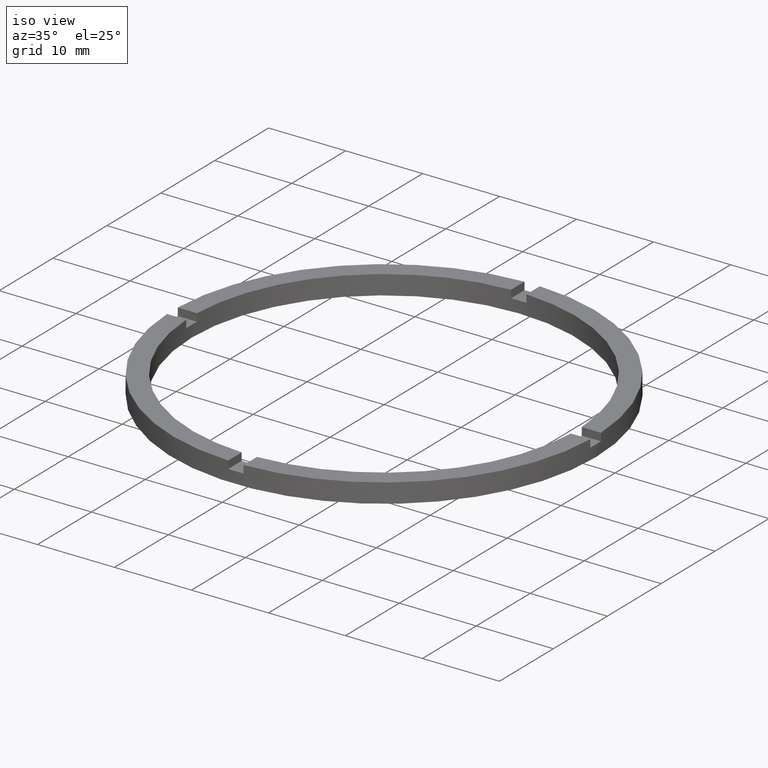
[diagram: clean part render]
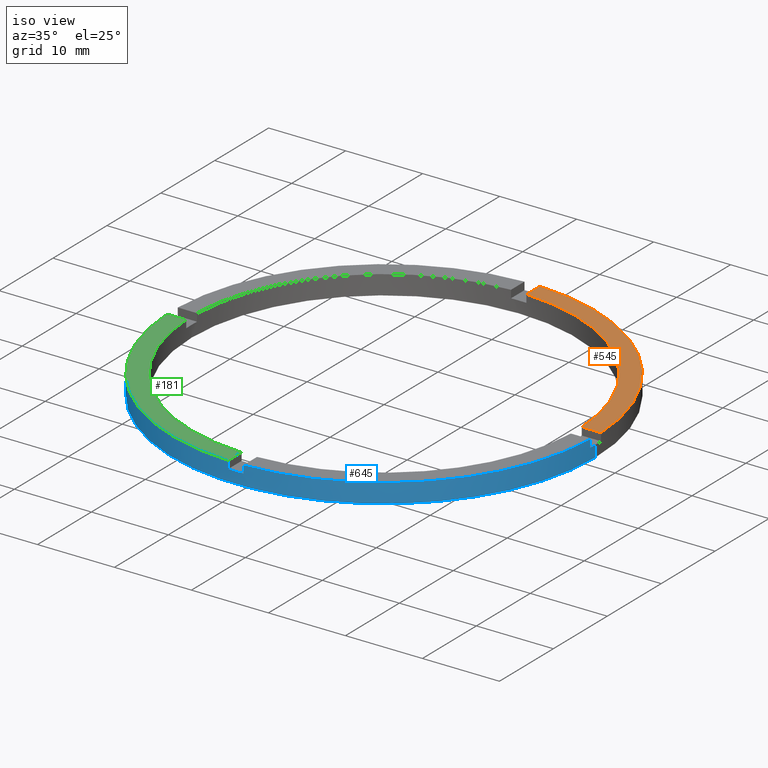
[diagram: same view with three faces highlighted in distinct colors, each labeled with its STEP entity id]
A machine part, iso view with three faces highlighted in distinct colors.
Their STEP definitions:

[orange] entity #545 — the highlighted planar face has unit normal (0, 0, 1).
#16 = LINE ( 'NONE', #481, #541 ) ;
#19 = EDGE_CURVE ( 'NONE', #359, #665, #283, .T. ) ;
#50 = DIRECTION ( 'NONE',  ( 1.000000000000000000, 0.000000000000000000, 0.000000000000000000 ) ) ;
#68 = EDGE_CURVE ( 'NONE', #596, #601, #16, .T. ) ;
#72 = ORIENTED_EDGE ( 'NONE', *, *, #68, .F. ) ;
#107 = EDGE_LOOP ( 'NONE', ( #416, #148, #72, #644 ) ) ;
#115 = CARTESIAN_POINT ( 'NONE',  ( 0.000000000000000000, 0.000000000000000000, 2.500000000000000000 ) ) ;
#148 = ORIENTED_EDGE ( 'NONE', *, *, #227, .F. ) ;
#165 = EDGE_CURVE ( 'NONE', #596, #665, #515, .T. ) ;
#166 = AXIS2_PLACEMENT_3D ( 'NONE', #192, #394, #572 ) ;
#192 = CARTESIAN_POINT ( 'NONE',  ( 0.000000000000000000, 0.000000000000000000, 2.500000000000000000 ) ) ;
#227 = EDGE_CURVE ( 'NONE', #601, #359, #523, .T. ) ;
#283 = LINE ( 'NONE', #292, #537 ) ;
#292 = CARTESIAN_POINT ( 'NONE',  ( 0.9999999999999735767, 17.50000000000000000, 2.500000000000000000 ) ) ;
#302 = AXIS2_PLACEMENT_3D ( 'NONE', #609, #321, #440 ) ;
#321 = DIRECTION ( 'NONE',  ( 0.000000000000000000, 0.000000000000000000, 1.000000000000000000 ) ) ;
#322 = AXIS2_PLACEMENT_3D ( 'NONE', #115, #335, #50 ) ;
#335 = DIRECTION ( 'NONE',  ( 0.000000000000000000, 0.000000000000000000, 1.000000000000000000 ) ) ;
#359 = VERTEX_POINT ( 'NONE', #464 ) ;
#394 = DIRECTION ( 'NONE',  ( 0.000000000000000000, 0.000000000000000000, 1.000000000000000000 ) ) ;
#416 = ORIENTED_EDGE ( 'NONE', *, *, #19, .F. ) ;
#434 = DIRECTION ( 'NONE',  ( -1.000000000000000000, -4.336808689942017120E-17, -0.000000000000000000 ) ) ;
#440 = DIRECTION ( 'NONE',  ( 1.000000000000000000, 0.000000000000000000, 0.000000000000000000 ) ) ;
#464 = CARTESIAN_POINT ( 'NONE',  ( 0.9999999999999735767, 24.97999199359359679, 2.500000000000000000 ) ) ;
#481 = CARTESIAN_POINT ( 'NONE',  ( 17.49999999999999645, 0.9999999999998425704, 2.500000000000000000 ) ) ;
#515 = CIRCLE ( 'NONE', #302, 27.50000000000000000 ) ;
#523 = CIRCLE ( 'NONE', #322, 25.00000000000000000 ) ;
#526 = DIRECTION ( 'NONE',  ( 0.000000000000000000, 1.000000000000000000, 0.000000000000000000 ) ) ;
#537 = VECTOR ( 'NONE', #526, 1000.000000000000000 ) ;
#541 = VECTOR ( 'NONE', #434, 1000.000000000000000 ) ;
#545 = ADVANCED_FACE ( 'NONE', ( #741 ), #566, .T. ) ;
#566 = PLANE ( 'NONE',  #166 ) ;
#572 = DIRECTION ( 'NONE',  ( 1.000000000000000000, 0.000000000000000000, -0.000000000000000000 ) ) ;
#575 = CARTESIAN_POINT ( 'NONE',  ( 24.97999199359360034, 0.9999999999998430145, 2.500000000000000000 ) ) ;
#585 = CARTESIAN_POINT ( 'NONE',  ( 0.9999999999999735767, 27.48181216732259102, 2.500000000000000000 ) ) ;
#596 = VERTEX_POINT ( 'NONE', #699 ) ;
#601 = VERTEX_POINT ( 'NONE', #575 ) ;
#609 = CARTESIAN_POINT ( 'NONE',  ( 0.000000000000000000, 0.000000000000000000, 2.500000000000000000 ) ) ;
#644 = ORIENTED_EDGE ( 'NONE', *, *, #165, .T. ) ;
#665 = VERTEX_POINT ( 'NONE', #585 ) ;
#699 = CARTESIAN_POINT ( 'NONE',  ( 27.48181216732259458, 0.9999999999998430145, 2.500000000000000000 ) ) ;
#741 = FACE_OUTER_BOUND ( 'NONE', #107, .T. ) ;

[blue] entity #645 — the highlighted cylindrical surface (partial cylindrical patch) has radius 27.5 mm, axis along (-0, -0, -1).
#3 = DIRECTION ( 'NONE',  ( 1.000000000000000000, 0.000000000000000000, 0.000000000000000000 ) ) ;
#12 = VECTOR ( 'NONE', #169, 1000.000000000000000 ) ;
#47 = CARTESIAN_POINT ( 'NONE',  ( 27.48181216732258392, -1.000000000000157208, 2.500000000000000000 ) ) ;
#57 = EDGE_CURVE ( 'NONE', #654, #403, #773, .T. ) ;
#58 = DIRECTION ( 'NONE',  ( 0.000000000000000000, 0.000000000000000000, 1.000000000000000000 ) ) ;
#61 = ORIENTED_EDGE ( 'NONE', *, *, #328, .F. ) ;
#76 = ORIENTED_EDGE ( 'NONE', *, *, #425, .F. ) ;
#78 = ORIENTED_EDGE ( 'NONE', *, *, #132, .F. ) ;
#81 = ORIENTED_EDGE ( 'NONE', *, *, #57, .T. ) ;
#104 = VERTEX_POINT ( 'NONE', #203 ) ;
#109 = VERTEX_POINT ( 'NONE', #123 ) ;
#123 = CARTESIAN_POINT ( 'NONE',  ( -1.000000000000160094, -27.48181216732258392, 1.500000000000000000 ) ) ;
#125 = DIRECTION ( 'NONE',  ( 0.000000000000000000, 0.000000000000000000, 1.000000000000000000 ) ) ;
#132 = EDGE_CURVE ( 'NONE', #109, #186, #776, .T. ) ;
#135 = CARTESIAN_POINT ( 'NONE',  ( 27.50000000000000000, 3.367778697655221307E-15, 0.000000000000000000 ) ) ;
#140 = EDGE_CURVE ( 'NONE', #445, #104, #507, .T. ) ;
#152 = AXIS2_PLACEMENT_3D ( 'NONE', #604, #196, #677 ) ;
#169 = DIRECTION ( 'NONE',  ( -0.000000000000000000, -0.000000000000000000, -1.000000000000000000 ) ) ;
#173 = AXIS2_PLACEMENT_3D ( 'NONE', #592, #125, #3 ) ;
#186 = VERTEX_POINT ( 'NONE', #664 ) ;
#194 = ORIENTED_EDGE ( 'NONE', *, *, #472, .T. ) ;
#195 = ORIENTED_EDGE ( 'NONE', *, *, #241, .T. ) ;
#196 = DIRECTION ( 'NONE',  ( 0.000000000000000000, 0.000000000000000000, 1.000000000000000000 ) ) ;
#203 = CARTESIAN_POINT ( 'NONE',  ( -27.48181216732259102, -1.000000000000026867, 1.500000000000000000 ) ) ;
#217 = DIRECTION ( 'NONE',  ( -0.000000000000000000, -0.000000000000000000, -1.000000000000000000 ) ) ;
#225 = AXIS2_PLACEMENT_3D ( 'NONE', #558, #565, #551 ) ;
#226 = CARTESIAN_POINT ( 'NONE',  ( -27.50000000000000000, 0.000000000000000000, 0.000000000000000000 ) ) ;
#231 = FACE_OUTER_BOUND ( 'NONE', #648, .T. ) ;
#240 = LINE ( 'NONE', #508, #759 ) ;
#241 = EDGE_CURVE ( 'NONE', #623, #186, #782, .T. ) ;
#248 = VECTOR ( 'NONE', #297, 1000.000000000000000 ) ;
#250 = DIRECTION ( 'NONE',  ( 1.000000000000000000, 0.000000000000000000, 0.000000000000000000 ) ) ;
#274 = DIRECTION ( 'NONE',  ( -0.000000000000000000, -0.000000000000000000, -1.000000000000000000 ) ) ;
#286 = AXIS2_PLACEMENT_3D ( 'NONE', #658, #401, #250 ) ;
#291 = VECTOR ( 'NONE', #274, 1000.000000000000000 ) ;
#296 = CIRCLE ( 'NONE', #286, 27.50000000000000000 ) ;
#297 = DIRECTION ( 'NONE',  ( 0.000000000000000000, 0.000000000000000000, 1.000000000000000000 ) ) ;
#303 = CIRCLE ( 'NONE', #173, 27.50000000000000000 ) ;
#306 = LINE ( 'NONE', #610, #291 ) ;
#326 = AXIS2_PLACEMENT_3D ( 'NONE', #777, #58, #428 ) ;
#328 = EDGE_CURVE ( 'NONE', #662, #452, #303, .T. ) ;
#344 = CARTESIAN_POINT ( 'NONE',  ( 0.9999999999998400169, -27.48181216732259458, 2.500000000000000000 ) ) ;
#351 = ORIENTED_EDGE ( 'NONE', *, *, #731, .T. ) ;
#361 = ORIENTED_EDGE ( 'NONE', *, *, #681, .T. ) ;
#362 = EDGE_CURVE ( 'NONE', #363, #369, #562, .T. ) ;
#363 = VERTEX_POINT ( 'NONE', #429 ) ;
#364 = DIRECTION ( 'NONE',  ( 1.000000000000000000, 0.000000000000000000, 0.000000000000000000 ) ) ;
#368 = VERTEX_POINT ( 'NONE', #47 ) ;
#369 = VERTEX_POINT ( 'NONE', #473 ) ;
#372 = CARTESIAN_POINT ( 'NONE',  ( 0.000000000000000000, 0.000000000000000000, 1.500000000000000000 ) ) ;
#373 = ORIENTED_EDGE ( 'NONE', *, *, #362, .F. ) ;
#401 = DIRECTION ( 'NONE',  ( 0.000000000000000000, 0.000000000000000000, 1.000000000000000000 ) ) ;
#403 = VERTEX_POINT ( 'NONE', #135 ) ;
#425 = EDGE_CURVE ( 'NONE', #623, #368, #296, .T. ) ;
#428 = DIRECTION ( 'NONE',  ( 1.000000000000000000, 0.000000000000000000, 0.000000000000000000 ) ) ;
#429 = CARTESIAN_POINT ( 'NONE',  ( 27.48181216732258392, -1.000000000000157208, 1.500000000000000000 ) ) ;
#430 = AXIS2_PLACEMENT_3D ( 'NONE', #372, #758, #364 ) ;
#441 = CARTESIAN_POINT ( 'NONE',  ( -27.50000000000000000, 0.000000000000000000, 1.500000000000000000 ) ) ;
#445 = VERTEX_POINT ( 'NONE', #441 ) ;
#452 = VERTEX_POINT ( 'NONE', #694 ) ;
#466 = DIRECTION ( 'NONE',  ( -1.000000000000000000, 0.000000000000000000, 0.000000000000000000 ) ) ;
#472 = EDGE_CURVE ( 'NONE', #445, #654, #306, .T. ) ;
#473 = CARTESIAN_POINT ( 'NONE',  ( 27.50000000000000000, 3.367778697655221307E-15, 1.500000000000000000 ) ) ;
#489 = CYLINDRICAL_SURFACE ( 'NONE', #636, 27.50000000000000000 ) ;
#497 = VECTOR ( 'NONE', #652, 1000.000000000000000 ) ;
#506 = DIRECTION ( 'NONE',  ( -0.000000000000000000, -0.000000000000000000, -1.000000000000000000 ) ) ;
#507 = CIRCLE ( 'NONE', #152, 27.50000000000000000 ) ;
#508 = CARTESIAN_POINT ( 'NONE',  ( -27.48181216732259102, -1.000000000000026867, 2.500000000000000000 ) ) ;
#551 = DIRECTION ( 'NONE',  ( 1.000000000000000000, 0.000000000000000000, 0.000000000000000000 ) ) ;
#558 = CARTESIAN_POINT ( 'NONE',  ( 0.000000000000000000, 0.000000000000000000, 1.500000000000000000 ) ) ;
#562 = CIRCLE ( 'NONE', #430, 27.50000000000000000 ) ;
#565 = DIRECTION ( 'NONE',  ( -0.000000000000000000, 0.000000000000000000, 1.000000000000000000 ) ) ;
#576 = CARTESIAN_POINT ( 'NONE',  ( 27.48181216732258392, -1.000000000000157208, 2.500000000000000000 ) ) ;
#578 = CARTESIAN_POINT ( 'NONE',  ( 0.9999999999998400169, -27.48181216732259458, 2.500000000000000000 ) ) ;
#592 = CARTESIAN_POINT ( 'NONE',  ( 0.000000000000000000, 0.000000000000000000, 2.500000000000000000 ) ) ;
#604 = CARTESIAN_POINT ( 'NONE',  ( 0.000000000000000000, 0.000000000000000000, 1.500000000000000000 ) ) ;
#610 = CARTESIAN_POINT ( 'NONE',  ( -27.50000000000000000, 0.000000000000000000, 2.500000000000000000 ) ) ;
#612 = EDGE_CURVE ( 'NONE', #369, #403, #743, .T. ) ;
#622 = ORIENTED_EDGE ( 'NONE', *, *, #612, .F. ) ;
#623 = VERTEX_POINT ( 'NONE', #578 ) ;
#636 = AXIS2_PLACEMENT_3D ( 'NONE', #752, #217, #466 ) ;
#640 = CARTESIAN_POINT ( 'NONE',  ( 27.50000000000000000, 3.367778697655221307E-15, 2.500000000000000000 ) ) ;
#641 = CARTESIAN_POINT ( 'NONE',  ( -27.48181216732259102, -1.000000000000026867, 2.500000000000000000 ) ) ;
#645 = ADVANCED_FACE ( 'NONE', ( #231 ), #489, .T. ) ;
#648 = EDGE_LOOP ( 'NONE', ( #622, #373, #351, #76, #195, #78, #361, #61, #713, #716, #194, #81 ) ) ;
#652 = DIRECTION ( 'NONE',  ( 0.000000000000000000, 0.000000000000000000, 1.000000000000000000 ) ) ;
#654 = VERTEX_POINT ( 'NONE', #226 ) ;
#658 = CARTESIAN_POINT ( 'NONE',  ( 0.000000000000000000, 0.000000000000000000, 2.500000000000000000 ) ) ;
#662 = VERTEX_POINT ( 'NONE', #641 ) ;
#664 = CARTESIAN_POINT ( 'NONE',  ( 0.9999999999998400169, -27.48181216732259458, 1.500000000000000000 ) ) ;
#668 = CARTESIAN_POINT ( 'NONE',  ( -1.000000000000160094, -27.48181216732258392, 2.500000000000000000 ) ) ;
#677 = DIRECTION ( 'NONE',  ( 1.000000000000000000, 0.000000000000000000, 0.000000000000000000 ) ) ;
#681 = EDGE_CURVE ( 'NONE', #109, #452, #750, .T. ) ;
#694 = CARTESIAN_POINT ( 'NONE',  ( -1.000000000000160094, -27.48181216732258392, 2.500000000000000000 ) ) ;
#713 = ORIENTED_EDGE ( 'NONE', *, *, #754, .T. ) ;
#716 = ORIENTED_EDGE ( 'NONE', *, *, #140, .F. ) ;
#731 = EDGE_CURVE ( 'NONE', #363, #368, #747, .T. ) ;
#743 = LINE ( 'NONE', #640, #749 ) ;
#747 = LINE ( 'NONE', #576, #497 ) ;
#749 = VECTOR ( 'NONE', #506, 1000.000000000000000 ) ;
#750 = LINE ( 'NONE', #668, #248 ) ;
#752 = CARTESIAN_POINT ( 'NONE',  ( 0.000000000000000000, 0.000000000000000000, 2.500000000000000000 ) ) ;
#754 = EDGE_CURVE ( 'NONE', #662, #104, #240, .T. ) ;
#755 = DIRECTION ( 'NONE',  ( -0.000000000000000000, -0.000000000000000000, -1.000000000000000000 ) ) ;
#758 = DIRECTION ( 'NONE',  ( 0.000000000000000000, 0.000000000000000000, 1.000000000000000000 ) ) ;
#759 = VECTOR ( 'NONE', #755, 1000.000000000000000 ) ;
#773 = CIRCLE ( 'NONE', #326, 27.50000000000000000 ) ;
#776 = CIRCLE ( 'NONE', #225, 27.50000000000000000 ) ;
#777 = CARTESIAN_POINT ( 'NONE',  ( 0.000000000000000000, 0.000000000000000000, 0.000000000000000000 ) ) ;
#782 = LINE ( 'NONE', #344, #12 ) ;

[green] entity #181 — the highlighted planar face has unit normal (0, 0, 1).
#3 = DIRECTION ( 'NONE',  ( 1.000000000000000000, 0.000000000000000000, 0.000000000000000000 ) ) ;
#7 = LINE ( 'NONE', #370, #289 ) ;
#30 = CIRCLE ( 'NONE', #533, 25.00000000000000000 ) ;
#45 = DIRECTION ( 'NONE',  ( 0.000000000000000000, 0.000000000000000000, 1.000000000000000000 ) ) ;
#64 = DIRECTION ( 'NONE',  ( 1.000000000000000000, 1.734723475976807341E-16, -0.000000000000000000 ) ) ;
#87 = EDGE_CURVE ( 'NONE', #662, #606, #7, .T. ) ;
#101 = ORIENTED_EDGE ( 'NONE', *, *, #87, .F. ) ;
#119 = CARTESIAN_POINT ( 'NONE',  ( -1.000000000000160316, -24.97999199359358968, 2.500000000000000000 ) ) ;
#125 = DIRECTION ( 'NONE',  ( 0.000000000000000000, 0.000000000000000000, 1.000000000000000000 ) ) ;
#141 = DIRECTION ( 'NONE',  ( 1.301042606982605567E-16, -1.000000000000000000, 0.000000000000000000 ) ) ;
#173 = AXIS2_PLACEMENT_3D ( 'NONE', #592, #125, #3 ) ;
#181 = ADVANCED_FACE ( 'NONE', ( #271 ), #210, .T. ) ;
#184 = ORIENTED_EDGE ( 'NONE', *, *, #328, .T. ) ;
#210 = PLANE ( 'NONE',  #396 ) ;
#267 = CARTESIAN_POINT ( 'NONE',  ( 0.000000000000000000, 0.000000000000000000, 2.500000000000000000 ) ) ;
#271 = FACE_OUTER_BOUND ( 'NONE', #619, .T. ) ;
#289 = VECTOR ( 'NONE', #64, 1000.000000000000000 ) ;
#303 = CIRCLE ( 'NONE', #173, 27.50000000000000000 ) ;
#328 = EDGE_CURVE ( 'NONE', #662, #452, #303, .T. ) ;
#331 = CARTESIAN_POINT ( 'NONE',  ( 0.000000000000000000, 0.000000000000000000, 2.500000000000000000 ) ) ;
#370 = CARTESIAN_POINT ( 'NONE',  ( -17.50000000000018474, -1.000000000000025091, 2.500000000000000000 ) ) ;
#375 = ORIENTED_EDGE ( 'NONE', *, *, #417, .F. ) ;
#379 = CARTESIAN_POINT ( 'NONE',  ( -1.000000000000161204, -17.50000000000018119, 2.500000000000000000 ) ) ;
#396 = AXIS2_PLACEMENT_3D ( 'NONE', #267, #45, #549 ) ;
#411 = DIRECTION ( 'NONE',  ( 1.000000000000000000, 0.000000000000000000, 0.000000000000000000 ) ) ;
#417 = EDGE_CURVE ( 'NONE', #606, #711, #30, .T. ) ;
#452 = VERTEX_POINT ( 'NONE', #694 ) ;
#504 = DIRECTION ( 'NONE',  ( 0.000000000000000000, 0.000000000000000000, 1.000000000000000000 ) ) ;
#533 = AXIS2_PLACEMENT_3D ( 'NONE', #331, #504, #411 ) ;
#549 = DIRECTION ( 'NONE',  ( 1.000000000000000000, 0.000000000000000000, -0.000000000000000000 ) ) ;
#583 = EDGE_CURVE ( 'NONE', #711, #452, #738, .T. ) ;
#592 = CARTESIAN_POINT ( 'NONE',  ( 0.000000000000000000, 0.000000000000000000, 2.500000000000000000 ) ) ;
#606 = VERTEX_POINT ( 'NONE', #745 ) ;
#617 = ORIENTED_EDGE ( 'NONE', *, *, #583, .F. ) ;
#619 = EDGE_LOOP ( 'NONE', ( #617, #375, #101, #184 ) ) ;
#641 = CARTESIAN_POINT ( 'NONE',  ( -27.48181216732259102, -1.000000000000026867, 2.500000000000000000 ) ) ;
#662 = VERTEX_POINT ( 'NONE', #641 ) ;
#694 = CARTESIAN_POINT ( 'NONE',  ( -1.000000000000160094, -27.48181216732258392, 2.500000000000000000 ) ) ;
#711 = VERTEX_POINT ( 'NONE', #119 ) ;
#738 = LINE ( 'NONE', #379, #766 ) ;
#745 = CARTESIAN_POINT ( 'NONE',  ( -24.97999199359359679, -1.000000000000026423, 2.500000000000000000 ) ) ;
#766 = VECTOR ( 'NONE', #141, 1000.000000000000000 ) ;